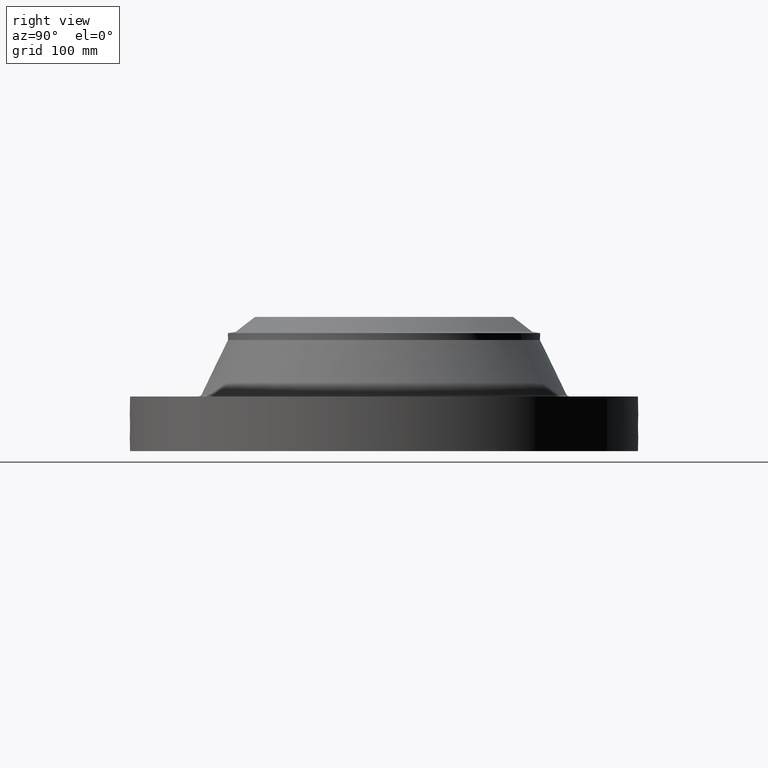
[diagram: clean part render]
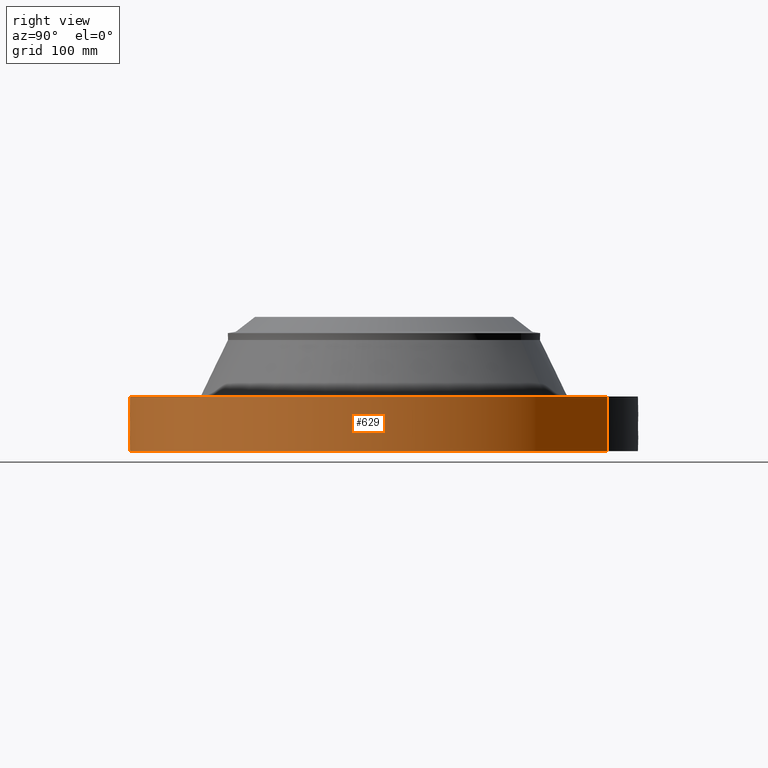
[diagram: same view with one face highlighted and labeled with its STEP entity id]
A machine part, right view. The second image highlights one B-rep face of the part: STEP entity #629.
In plain terms, the highlighted cylindrical surface (partial cylindrical patch) has radius 222.25 mm, axis along (0, 0, -1).
Its self-contained STEP definition (entity closure, byte-faithful):
#38=AXIS2_PLACEMENT_3D('Cylinder Axis2P3D',#35,#36,#37) ;
#169=AXIS2_PLACEMENT_3D('Circle Axis2P3D',#167,#168,$) ;
#533=AXIS2_PLACEMENT_3D('Circle Axis2P3D',#531,#532,$) ;
#35=CARTESIAN_POINT('Axis2P3D Location',(0.,0.,2.37000000001)) ;
#44=CARTESIAN_POINT('Vertex',(-4.1949734628,-7.67884741657,0.0600000000002)) ;
#46=CARTESIAN_POINT('Vertex',(4.1949734628,7.67884741657,0.0600000000002)) ;
#49=CARTESIAN_POINT('Line Origine',(-4.1949734628,-7.67884741657,1.)) ;
#53=CARTESIAN_POINT('Vertex',(-4.1949734628,-7.67884741657,1.94000000001)) ;
#60=CARTESIAN_POINT('Vertex',(4.1949734628,7.67884741657,1.94000000001)) ;
#63=CARTESIAN_POINT('Line Origine',(4.1949734628,7.67884741657,1.)) ;
#167=CARTESIAN_POINT('Axis2P3D Location',(0.,0.,0.0600000000002)) ;
#531=CARTESIAN_POINT('Axis2P3D Location',(0.,0.,1.94000000001)) ;
#543=CARTESIAN_POINT('Control Point',(0.0581089625136,-8.74980704639,1.28931263406)) ;
#544=CARTESIAN_POINT('Control Point',(0.0391512505033,-8.74993294779,1.29247036247)) ;
#545=CARTESIAN_POINT('Control Point',(0.0199353916991,-8.74999839758,1.29407954697)) ;
#546=CARTESIAN_POINT('Control Point',(0.000716211350873,-8.74999997072,1.29411849893)) ;
#547=CARTESIAN_POINT('Vertex',(0.0580953077663,-8.74980738873,1.28931519353)) ;
#549=CARTESIAN_POINT('Vertex',(0.000716087123925,-8.74999997073,1.29411850938)) ;
#553=CARTESIAN_POINT('Control Point',(0.0580952083203,-8.74980713772,1.28931463772)) ;
#554=CARTESIAN_POINT('Control Point',(0.0974883504066,-8.74954558307,1.28448275707)) ;
#555=CARTESIAN_POINT('Control Point',(0.136130062226,-8.749012969,1.27246972712)) ;
#556=CARTESIAN_POINT('Control Point',(0.171610206376,-8.74831697744,1.25416185771)) ;
#557=CARTESIAN_POINT('Vertex',(0.171610206376,-8.74831697744,1.25416185771)) ;
#561=CARTESIAN_POINT('Control Point',(0.0302669452421,-8.74994765199,0.531133858009)) ;
#562=CARTESIAN_POINT('Control Point',(0.0865126332263,-8.74975309253,0.53828620631)) ;
#563=CARTESIAN_POINT('Control Point',(0.141163784573,-8.74911210098,0.555899644836)) ;
#564=CARTESIAN_POINT('Control Point',(0.1914794744,-8.74808366127,0.583467507006)) ;
#565=CARTESIAN_POINT('Control Point',(0.26458521098,-8.74612690907,0.642883900449)) ;
#566=CARTESIAN_POINT('Control Point',(0.316528471727,-8.74430507465,0.719208877467)) ;
#567=CARTESIAN_POINT('Control Point',(0.333583708521,-8.74365536413,0.751880832694)) ;
#568=CARTESIAN_POINT('Control Point',(0.368975032984,-8.74224702288,0.84403526871)) ;
#569=CARTESIAN_POINT('Control Point',(0.375098714791,-8.74194353724,0.942677587485)) ;
#570=CARTESIAN_POINT('Control Point',(0.366946053483,-8.7423150234,1.0043264819)) ;
#571=CARTESIAN_POINT('Control Point',(0.333642919132,-8.74374182171,1.10228712872)) ;
#572=CARTESIAN_POINT('Control Point',(0.270966418035,-8.74586349314,1.18272418423)) ;
#573=CARTESIAN_POINT('Control Point',(0.241231340862,-8.74676440562,1.21147018011)) ;
#574=CARTESIAN_POINT('Control Point',(0.207766138582,-8.74760772936,1.23550527931)) ;
#575=CARTESIAN_POINT('Control Point',(0.171610206376,-8.74831697744,1.25416185771)) ;
#576=CARTESIAN_POINT('Vertex',(0.0302669452421,-8.74994765199,0.531133858009)) ;
#580=CARTESIAN_POINT('Control Point',(0.0302669452421,-8.74994765199,0.531133858009)) ;
#581=CARTESIAN_POINT('Control Point',(0.020172125313,-8.74998257099,0.530866678197)) ;
#582=CARTESIAN_POINT('Control Point',(0.0100722732255,-8.75000000318,0.530947102164)) ;
#583=CARTESIAN_POINT('Control Point',(-2.72878354645E-006,-8.75000000003,0.531374667805)) ;
#584=CARTESIAN_POINT('Vertex',(-2.72878354107E-006,-8.75000000003,0.531374667805)) ;
#588=CARTESIAN_POINT('Control Point',(-0.19328241765,-8.74786499139,0.58620888473)) ;
#589=CARTESIAN_POINT('Control Point',(-0.149259962903,-8.74883765918,0.561336698201)) ;
#590=CARTESIAN_POINT('Control Point',(-0.101168835305,-8.74960564367,0.543535968948)) ;
#591=CARTESIAN_POINT('Control Point',(-0.050824675181,-8.74999998419,0.533531464396)) ;
#592=CARTESIAN_POINT('Control Point',(-2.72878354646E-006,-8.75000000003,0.531374667805)) ;
#593=CARTESIAN_POINT('Vertex',(-0.19328241765,-8.74786499139,0.58620888473)) ;
#597=CARTESIAN_POINT('Control Point',(-0.19328241765,-8.74786499139,0.58620888473)) ;
#598=CARTESIAN_POINT('Control Point',(-0.222320018112,-8.74722341112,0.602614798393)) ;
#599=CARTESIAN_POINT('Control Point',(-0.249702852724,-8.74649784976,0.621904373344)) ;
#600=CARTESIAN_POINT('Control Point',(-0.275025900383,-8.74572453906,0.643907791712)) ;
#601=CARTESIAN_POINT('Control Point',(-0.341959851546,-8.74345928948,0.715550689398)) ;
#602=CARTESIAN_POINT('Control Point',(-0.384721494851,-8.74157999933,0.805221661269)) ;
#603=CARTESIAN_POINT('Control Point',(-0.399824078764,-8.74084549763,0.869596656205)) ;
#604=CARTESIAN_POINT('Control Point',(-0.400741236171,-8.74084616963,0.983900944783)) ;
#605=CARTESIAN_POINT('Control Point',(-0.360682761574,-8.74259093648,1.08862858367)) ;
#606=CARTESIAN_POINT('Control Point',(-0.336434934172,-8.74359787656,1.13009590886)) ;
#607=CARTESIAN_POINT('Control Point',(-0.267541246871,-8.74613174571,1.21398892354)) ;
#608=CARTESIAN_POINT('Control Point',(-0.17460187648,-8.74851033483,1.26870826516)) ;
#609=CARTESIAN_POINT('Control Point',(-0.117427738866,-8.74951483398,1.2885835666)) ;
#610=CARTESIAN_POINT('Control Point',(-0.0582715845097,-8.75000017228,1.29701111921)) ;
#611=CARTESIAN_POINT('Control Point',(2.58579355166E-005,-8.75,1.29415298432)) ;
#612=CARTESIAN_POINT('Vertex',(2.58579355356E-005,-8.75,1.29415298432)) ;
#616=CARTESIAN_POINT('Control Point',(0.000716087113733,-8.74999997073,1.29411850936)) ;
#617=CARTESIAN_POINT('Control Point',(0.000370996570185,-8.74999999898,1.2941360633)) ;
#618=CARTESIAN_POINT('Control Point',(2.58579413605E-005,-8.75,1.29415298432)) ;
#36=DIRECTION('Axis2P3D Direction',(0.,0.,-0.0393700787402)) ;
#37=DIRECTION('Axis2P3D XDirection',(0.0188750212049,0.0345504945626,0.)) ;
#50=DIRECTION('Vector Direction',(0.,0.,-0.0393700787402)) ;
#64=DIRECTION('Vector Direction',(0.,0.,-0.0393700787402)) ;
#168=DIRECTION('Axis2P3D Direction',(0.,0.,-0.0393700787402)) ;
#532=DIRECTION('Axis2P3D Direction',(0.,0.,-0.0393700787402)) ;
#51=VECTOR('Line Direction',#50,0.0393700787402) ;
#65=VECTOR('Line Direction',#64,0.0393700787402) ;
#537=ORIENTED_EDGE('',*,*,#171,.F.) ;
#538=ORIENTED_EDGE('',*,*,#67,.T.) ;
#539=ORIENTED_EDGE('',*,*,#535,.T.) ;
#540=ORIENTED_EDGE('',*,*,#55,.F.) ;
#621=ORIENTED_EDGE('',*,*,#551,.F.) ;
#622=ORIENTED_EDGE('',*,*,#559,.T.) ;
#623=ORIENTED_EDGE('',*,*,#578,.F.) ;
#624=ORIENTED_EDGE('',*,*,#586,.T.) ;
#625=ORIENTED_EDGE('',*,*,#595,.F.) ;
#626=ORIENTED_EDGE('',*,*,#614,.T.) ;
#627=ORIENTED_EDGE('',*,*,#619,.F.) ;
#628=FACE_BOUND('',#620,.T.) ;
#629=ADVANCED_FACE('PartBody',(#541,#628),#39,.T.) ;
#542=B_SPLINE_CURVE_WITH_KNOTS('',3,(#543,#544,#545,#546),.UNSPECIFIED.,.F.,.U.,(4,4),(4.38916387385,6.52135751452),.UNSPECIFIED.) ;
#552=B_SPLINE_CURVE_WITH_KNOTS('',3,(#553,#554,#555,#556),.UNSPECIFIED.,.F.,.U.,(4,4),(0.,4.45941834651),.UNSPECIFIED.) ;
#560=B_SPLINE_CURVE_WITH_KNOTS('',5,(#561,#562,#563,#564,#565,#566,#567,#568,#569,#570,#571,#572,#573,#574,#575),.UNSPECIFIED.,.F.,.U.,(6,3,3,3,6),(0.,9.85389269084,16.4310812035,27.5941599263,35.1680876175),.UNSPECIFIED.) ;
#579=B_SPLINE_CURVE_WITH_KNOTS('',3,(#580,#581,#582,#583),.UNSPECIFIED.,.F.,.U.,(4,4),(0.,1.05295553536),.UNSPECIFIED.) ;
#587=B_SPLINE_CURVE_WITH_KNOTS('',4,(#588,#589,#590,#591,#592),.UNSPECIFIED.,.F.,.U.,(5,5),(0.,7.08198368138),.UNSPECIFIED.) ;
#596=B_SPLINE_CURVE_WITH_KNOTS('',5,(#597,#598,#599,#600,#601,#602,#603,#604,#605,#606,#607,#608,#609,#610,#611),.UNSPECIFIED.,.F.,.U.,(6,3,3,3,6),(0.,5.83917378528,17.100762783,25.5637752972,36.4607761786),.UNSPECIFIED.) ;
#615=B_SPLINE_CURVE_WITH_KNOTS('',2,(#616,#617,#618),.UNSPECIFIED.,.F.,.U.,(3,3),(1.04631464727,1.07212007524),.UNSPECIFIED.) ;
#170=CIRCLE('generated circle',#169,8.75000000003) ;
#534=CIRCLE('generated circle',#533,8.75000000003) ;
#39=CYLINDRICAL_SURFACE('generated cylinder',#38,8.75000000003) ;
#55=EDGE_CURVE('',#45,#54,#52,.F.) ;
#67=EDGE_CURVE('',#47,#61,#66,.F.) ;
#171=EDGE_CURVE('',#47,#45,#170,.T.) ;
#535=EDGE_CURVE('',#61,#54,#534,.T.) ;
#551=EDGE_CURVE('',#548,#550,#542,.T.) ;
#559=EDGE_CURVE('',#548,#558,#552,.T.) ;
#578=EDGE_CURVE('',#577,#558,#560,.T.) ;
#586=EDGE_CURVE('',#577,#585,#579,.T.) ;
#595=EDGE_CURVE('',#594,#585,#587,.T.) ;
#614=EDGE_CURVE('',#594,#613,#596,.T.) ;
#619=EDGE_CURVE('',#550,#613,#615,.T.) ;
#536=EDGE_LOOP('',(#537,#538,#539,#540)) ;
#620=EDGE_LOOP('',(#621,#622,#623,#624,#625,#626,#627)) ;
#541=FACE_OUTER_BOUND('',#536,.T.) ;
#52=LINE('Line',#49,#51) ;
#66=LINE('Line',#63,#65) ;
#45=VERTEX_POINT('',#44) ;
#47=VERTEX_POINT('',#46) ;
#54=VERTEX_POINT('',#53) ;
#61=VERTEX_POINT('',#60) ;
#548=VERTEX_POINT('',#547) ;
#550=VERTEX_POINT('',#549) ;
#558=VERTEX_POINT('',#557) ;
#577=VERTEX_POINT('',#576) ;
#585=VERTEX_POINT('',#584) ;
#594=VERTEX_POINT('',#593) ;
#613=VERTEX_POINT('',#612) ;